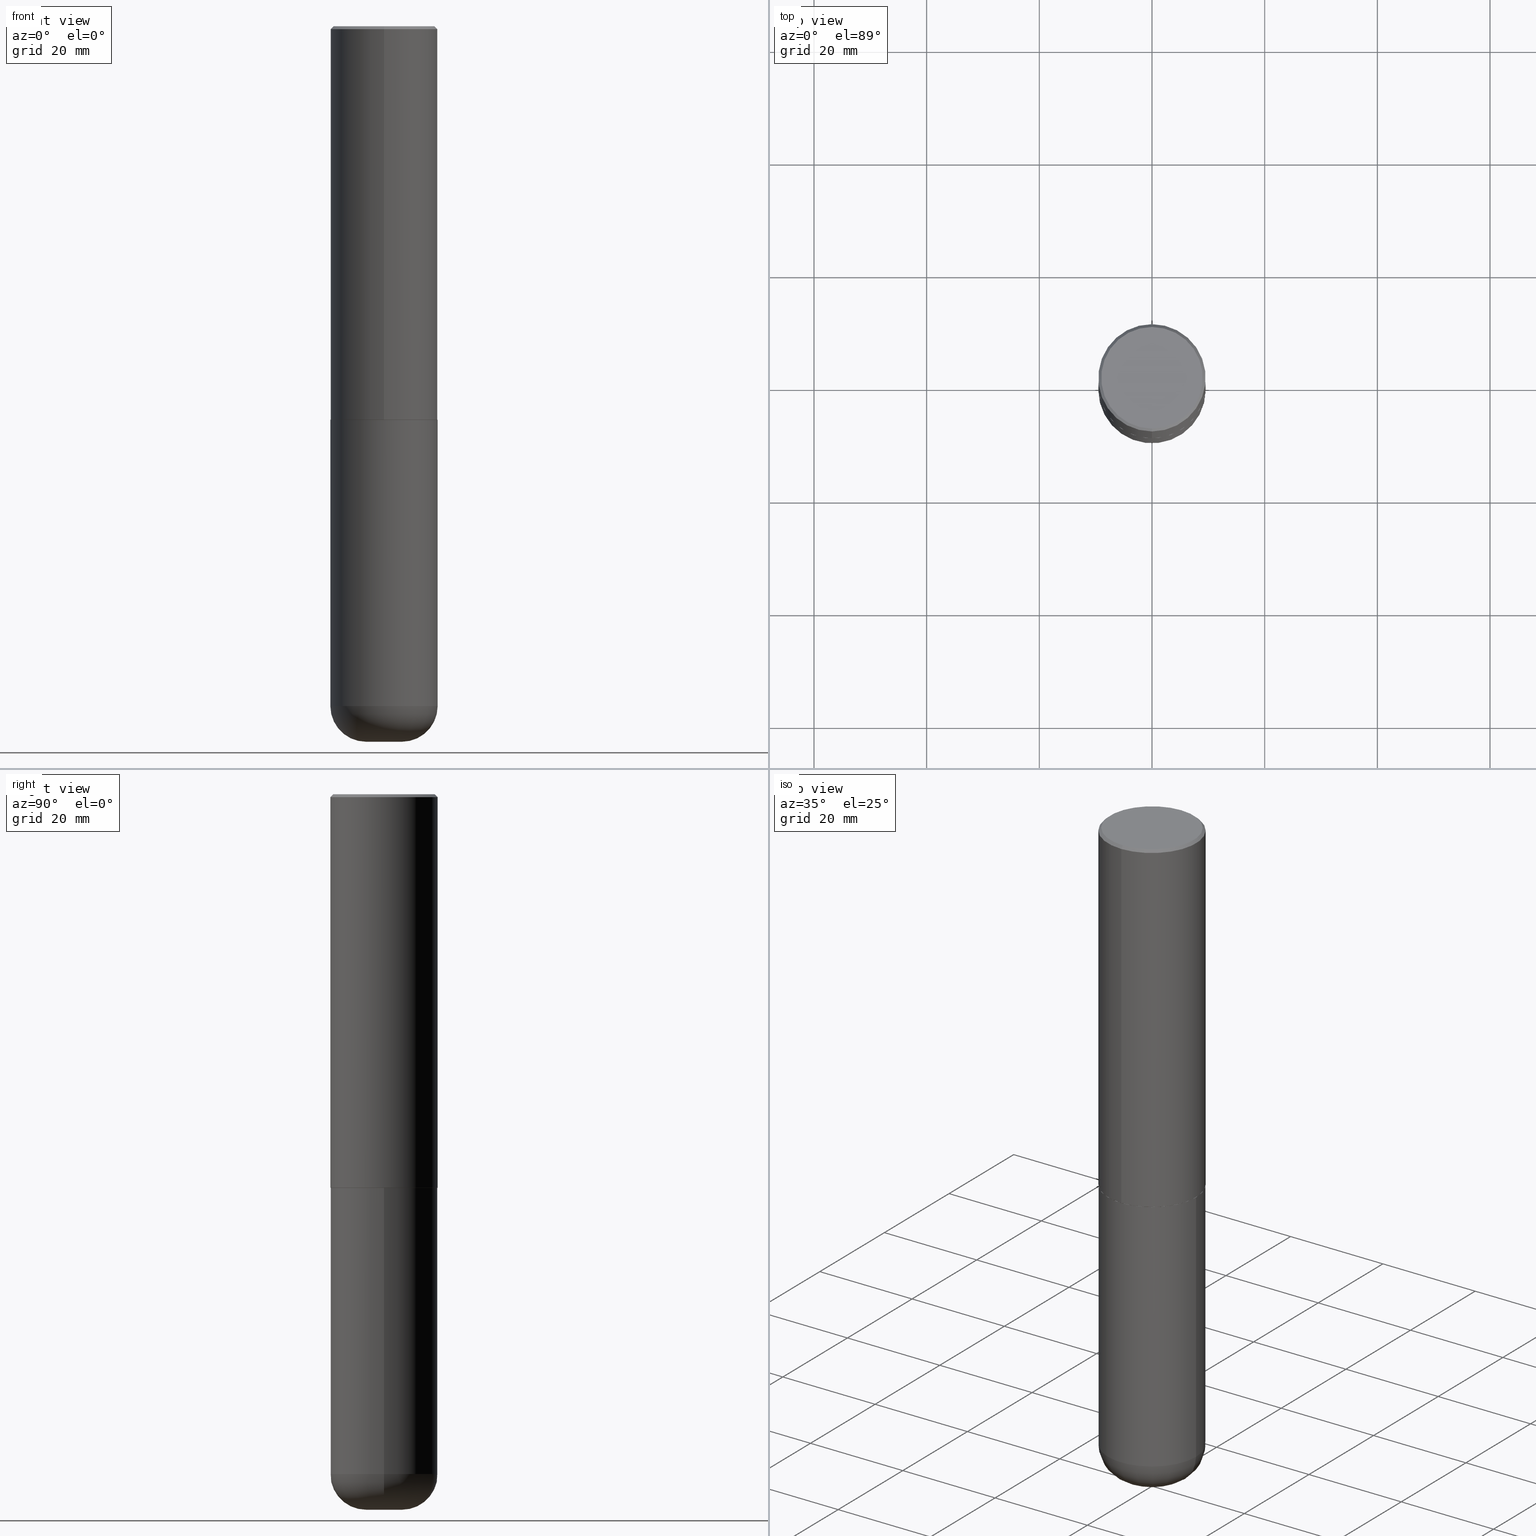
[diagram: canonical four-view strip — front | top / right | iso, engineering-drawing reading convention]
A machine part, canonical four-view strip (front | top / right | iso — engineering-drawing reading convention). The complete STEP part file that produces these views, byte-faithful:
ISO-10303-21;
HEADER;
FILE_DESCRIPTION (( 'STEP AP203' ),
    '1' );
FILE_NAME ('37687.STEP',
    '2024-03-02T08:19:22',
    ( '' ),
    ( '' ),
    'SwSTEP 2.0',
    'SolidWorks 2023',
    '' );
FILE_SCHEMA (( 'CONFIG_CONTROL_DESIGN' ));
ENDSEC;

DATA;
#1 = LINE ( 'NONE', #71, #305 ) ;
#2 = DIRECTION ( 'NONE',  ( -2.445468806185136877E-29, 3.491481338843145188E-15, 1.000000000000000000 ) ) ;
#3 = CIRCLE ( 'NONE', #383, 0.3750000000000000555 ) ;
#4 = ADVANCED_FACE ( 'NONE', ( #402 ), #225, .T. ) ;
#5 = DIRECTION ( 'NONE',  ( 7.105427357601001859E-15, 1.000000000000000000, -3.491481338843145583E-15 ) ) ;
#6 = ORIENTED_EDGE ( 'NONE', *, *, #344, .F. ) ;
#7 = EDGE_CURVE ( 'NONE', #157, #76, #164, .T. ) ;
#8 = VECTOR ( 'NONE', #2, 39.37007874015748143 ) ;
#9 = CARTESIAN_POINT ( 'NONE',  ( -2.504081769186608216E-15, -0.3549999999999999822, 1.285848347115290366E-15 ) ) ;
#10 = AXIS2_PLACEMENT_3D ( 'NONE', #177, #304, #363 ) ;
#11 = CONICAL_SURFACE ( 'NONE', #362, 0.3739999999999999991, 0.7853981633977213939 ) ;
#12 = ORIENTED_EDGE ( 'NONE', *, *, #195, .T. ) ;
#13 = ORIENTED_EDGE ( 'NONE', *, *, #68, .F. ) ;
#14 = DIRECTION ( 'NONE',  ( 6.982962677686265922E-15, 1.000000000000000000, -3.494488891895536035E-15 ) ) ;
#15 = ORIENTED_EDGE ( 'NONE', *, *, #281, .T. ) ;
#16 = AXIS2_PLACEMENT_3D ( 'NONE', #227, #258, #32 ) ;
#17 = EDGE_LOOP ( 'NONE', ( #202, #88 ) ) ;
#18 = CC_DESIGN_PERSON_AND_ORGANIZATION_ASSIGNMENT ( #120, #224, ( #75 ) ) ;
#19 = PERSON_AND_ORGANIZATION ( #272, #415 ) ;
#20 = EDGE_LOOP ( 'NONE', ( #43, #370, #384, #214 ) ) ;
#21 = CARTESIAN_POINT ( 'NONE',  ( 2.478951750578624209E-15, 0.3549999999999999822, -1.215853765202481601E-15 ) ) ;
#22 = DIRECTION ( 'NONE',  ( 6.982962677686265922E-15, 1.000000000000000000, -3.490662795793665557E-15 ) ) ;
#23 = SECURITY_CLASSIFICATION_LEVEL ( 'unclassified' ) ;
#24 = CARTESIAN_POINT ( 'NONE',  ( 0.1250000000000000555, -1.833027702892651638E-14, -5.000000000000000888 ) ) ;
#25 = AXIS2_PLACEMENT_3D ( 'NONE', #190, #323, #278 ) ;
#26 = APPLICATION_PROTOCOL_DEFINITION ( 'international standard', 'config_control_design', 1994, #70 ) ;
#27 = LOCAL_TIME ( 3, 19, 22.00000000000000000, #321 ) ;
#28 = DIMENSIONAL_EXPONENTS ( 1.000000000000000000, 0.000000000000000000, 0.000000000000000000, 0.000000000000000000, 0.000000000000000000, 0.000000000000000000, 0.000000000000000000 ) ;
#29 = DATE_AND_TIME ( #194, #37 ) ;
#30 = EDGE_LOOP ( 'NONE', ( #343, #350, #399, #47 ) ) ;
#31 = FACE_OUTER_BOUND ( 'NONE', #180, .T. ) ;
#32 = DIRECTION ( 'NONE',  ( 1.000000000000000000, -6.982962677686266711E-15, 0.000000000000000000 ) ) ;
#33 = LINE ( 'NONE', #178, #373 ) ;
#34 = ORIENTED_EDGE ( 'NONE', *, *, #49, .F. ) ;
#35 = DIRECTION ( 'NONE',  ( -6.982962677686265922E-15, -1.000000000000000000, 3.494488891895536035E-15 ) ) ;
#36 = AXIS2_PLACEMENT_3D ( 'NONE', #241, #78, #14 ) ;
#37 = LOCAL_TIME ( 3, 19, 22.00000000000000000, #161 ) ;
#38 = PRODUCT_DEFINITION_SHAPE ( 'NONE', 'NONE',  #63 ) ;
#39 = CC_DESIGN_PERSON_AND_ORGANIZATION_ASSIGNMENT ( #59, #411, ( #337 ) ) ;
#40 = EDGE_LOOP ( 'NONE', ( #100, #313, #407, #204 ) ) ;
#41 = CYLINDRICAL_SURFACE ( 'NONE', #150, 0.3749999999999999445 ) ;
#42 = CARTESIAN_POINT ( 'NONE',  ( 1.161597682937940108E-28, -1.658453635950494339E-14, -4.750000000000000000 ) ) ;
#43 = ORIENTED_EDGE ( 'NONE', *, *, #168, .F. ) ;
#44 = EDGE_CURVE ( 'NONE', #65, #246, #60, .T. ) ;
#45 = AXIS2_PLACEMENT_3D ( 'NONE', #395, #223, #99 ) ;
#46 = CIRCLE ( 'NONE', #174, 0.2500000000000003886 ) ;
#47 = ORIENTED_EDGE ( 'NONE', *, *, #331, .F. ) ;
#48 = PLANE ( 'NONE',  #45 ) ;
#49 = EDGE_CURVE ( 'NONE', #328, #334, #250, .T. ) ;
#50 = PERSON_AND_ORGANIZATION ( #272, #415 ) ;
#51 = APPLICATION_PROTOCOL_DEFINITION ( 'international standard', 'config_control_design', 1994, #409 ) ;
#52 = VECTOR ( 'NONE', #176, 39.37007874015748143 ) ;
#53 = CONICAL_SURFACE ( 'NONE', #226, 0.3750000000000000555, 0.7853981633974465026 ) ;
#54 = EDGE_CURVE ( 'NONE', #76, #114, #229, .T. ) ;
#55 = EDGE_LOOP ( 'NONE', ( #208, #332, #108, #113 ) ) ;
#56 = CARTESIAN_POINT ( 'NONE',  ( 0.3750000000000002220, -1.920314736363729341E-14, -4.750000000000000000 ) ) ;
#57 = CC_DESIGN_DATE_AND_TIME_ASSIGNMENT ( #29, #276, ( #300 ) ) ;
#58 = AXIS2_PLACEMENT_3D ( 'NONE', #309, #5, #394 ) ;
#59 = PERSON_AND_ORGANIZATION ( #272, #415 ) ;
#60 = LINE ( 'NONE', #135, #207 ) ;
#61 = EDGE_CURVE ( 'NONE', #114, #246, #273, .T. ) ;
#62 = FACE_OUTER_BOUND ( 'NONE', #263, .T. ) ;
#63 = PRODUCT_DEFINITION ( 'UNKNOWN', '', #337, #158 ) ;
#64 = LINE ( 'NONE', #257, #352 ) ;
#65 = VERTEX_POINT ( 'NONE', #396 ) ;
#66 = CIRCLE ( 'NONE', #336, 0.3750000000000003886 ) ;
#67 = EDGE_LOOP ( 'NONE', ( #83, #416 ) ) ;
#68 = EDGE_CURVE ( 'NONE', #157, #246, #64, .T. ) ;
#69 = FACE_OUTER_BOUND ( 'NONE', #40, .T. ) ;
#70 = APPLICATION_CONTEXT ( 'configuration controlled 3d designs of mechanical parts and assemblies' ) ;
#71 = CARTESIAN_POINT ( 'NONE',  ( -0.3749999999999999445, 2.664535259100375303E-15, -1.844600658845589318E-29 ) ) ;
#72 = ORIENTED_EDGE ( 'NONE', *, *, #195, .F. ) ;
#73 = AXIS2_PLACEMENT_3D ( 'NONE', #319, #356, #137 ) ;
#74 = APPROVAL_PERSON_ORGANIZATION ( #379, #181, #189 ) ;
#75 = PRODUCT ( '37687', '37687', '', ( #311 ) ) ;
#76 = VERTEX_POINT ( 'NONE', #131 ) ;
#77 = CARTESIAN_POINT ( 'NONE',  ( 6.724165036897648492E-29, -9.595832025636787455E-15, -2.749000000000000110 ) ) ;
#78 = DIRECTION ( 'NONE',  ( 2.446040391741596606E-29, -3.490662795793665557E-15, -1.000000000000000000 ) ) ;
#79 = CARTESIAN_POINT ( 'NONE',  ( 1.161597682937940108E-28, -1.658453635950494339E-14, -4.750000000000000000 ) ) ;
#80 = ORIENTED_EDGE ( 'NONE', *, *, #220, .F. ) ;
#81 = EDGE_CURVE ( 'NONE', #301, #114, #33, .T. ) ;
#82 = APPROVAL_STATUS ( 'not_yet_approved' ) ;
#83 = ORIENTED_EDGE ( 'NONE', *, *, #303, .F. ) ;
#84 = FACE_OUTER_BOUND ( 'NONE', #326, .T. ) ;
#85 = CIRCLE ( 'NONE', #324, 0.3749999999999999445 ) ;
#86 = CC_DESIGN_APPROVAL ( #270, ( #63 ) ) ;
#87 = PLANE ( 'NONE',  #104 ) ;
#88 = ORIENTED_EDGE ( 'NONE', *, *, #347, .T. ) ;
#89 = CARTESIAN_POINT ( 'NONE',  ( 6.726611077289389265E-29, -9.599322688432580971E-15, -2.750000000000000000 ) ) ;
#90 = DIRECTION ( 'NONE',  ( -6.982962677686266711E-15, -1.000000000000000000, 2.921762560068730595E-15 ) ) ;
#91 = PLANE ( 'NONE',  #354 ) ;
#92 = EDGE_CURVE ( 'NONE', #138, #364, #345, .T. ) ;
#93 = CARTESIAN_POINT ( 'NONE',  ( 2.660982545421643429E-15, 0.3739999999999903957, -2.750000000000000888 ) ) ;
#94 = VECTOR ( 'NONE', #129, 39.37007874015748143 ) ;
#95 = CIRCLE ( 'NONE', #16, 0.3750000000000000555 ) ;
#96 = EDGE_CURVE ( 'NONE', #148, #65, #98, .T. ) ;
#97 = DIRECTION ( 'NONE',  ( -1.000000000000000000, 6.982962677686265922E-15, -4.876176775795935793E-29 ) ) ;
#98 = LINE ( 'NONE', #105, #52 ) ;
#99 = DIRECTION ( 'NONE',  ( -1.000000000000000000, 6.982962677686265922E-15, -4.876176775795935793E-29 ) ) ;
#100 = ORIENTED_EDGE ( 'NONE', *, *, #81, .F. ) ;
#101 = CARTESIAN_POINT ( 'NONE',  ( 0.000000000000000000, 0.000000000000000000, 0.000000000000000000 ) ) ;
#102 = ORIENTED_EDGE ( 'NONE', *, *, #146, .T. ) ;
#103 = TOROIDAL_SURFACE ( 'NONE', #329, 0.1250000000000000278, 0.2500000000000003886 ) ;
#104 = AXIS2_PLACEMENT_3D ( 'NONE', #160, #322, #97 ) ;
#105 = CARTESIAN_POINT ( 'NONE',  ( -2.611628041454596160E-15, -0.3740000000000096581, -2.749999999999998668 ) ) ;
#106 = EDGE_LOOP ( 'NONE', ( #307, #338, #12, #372 ) ) ;
#107 = CARTESIAN_POINT ( 'NONE',  ( 0.000000000000000000, 0.000000000000000000, 0.000000000000000000 ) ) ;
#108 = ORIENTED_EDGE ( 'NONE', *, *, #331, .T. ) ;
#109 = DIRECTION ( 'NONE',  ( 1.000000000000000000, -6.982962677686269077E-15, 0.000000000000000000 ) ) ;
#110 = ORIENTED_EDGE ( 'NONE', *, *, #54, .T. ) ;
#111 = CONICAL_SURFACE ( 'NONE', #173, 0.3739999999999999991, 0.7853981633977213939 ) ;
#112 = APPROVAL_PERSON_ORGANIZATION ( #197, #270, #167 ) ;
#113 = ORIENTED_EDGE ( 'NONE', *, *, #146, .F. ) ;
#114 = VERTEX_POINT ( 'NONE', #235 ) ;
#115 = ADVANCED_FACE ( 'NONE', ( #203 ), #48, .F. ) ;
#116 =( CONVERSION_BASED_UNIT ( 'INCH', #405 ) LENGTH_UNIT ( ) NAMED_UNIT ( #28 ) );
#117 = CLOSED_SHELL ( 'NONE', ( #149, #357, #340, #4, #209, #374, #206, #355 ) ) ;
#118 = CC_DESIGN_PERSON_AND_ORGANIZATION_ASSIGNMENT ( #386, #219, ( #337 ) ) ;
#119 = UNCERTAINTY_MEASURE_WITH_UNIT (LENGTH_MEASURE( 1.000000000000000082E-05 ), #116, 'distance_accuracy_value', 'NONE');
#120 = PERSON_AND_ORGANIZATION ( #272, #415 ) ;
#121 = ORIENTED_EDGE ( 'NONE', *, *, #7, .T. ) ;
#122 = DIRECTION ( 'NONE',  ( 1.000000000000000000, -6.982962677686266711E-15, 4.876176775795935793E-29 ) ) ;
#123 = DIRECTION ( 'NONE',  ( -2.446040391741596606E-29, 3.490662795793665557E-15, 1.000000000000000000 ) ) ;
#124 = CARTESIAN_POINT ( 'NONE',  ( -1.141397163745304909E-45, 1.628849886601155835E-31, 4.666305460853910467E-17 ) ) ;
#125 = ORIENTED_EDGE ( 'NONE', *, *, #303, .T. ) ;
#126 = CARTESIAN_POINT ( 'NONE',  ( 1.161597682937940108E-28, -1.658453635950494339E-14, -4.750000000000000000 ) ) ;
#127 = DIRECTION ( 'NONE',  ( 1.000000000000000000, 0.000000000000000000, 0.000000000000000000 ) ) ;
#128 = CIRCLE ( 'NONE', #330, 0.3739999999999999991 ) ;
#129 = DIRECTION ( 'NONE',  ( 5.024295867789434219E-15, 0.7071067811867430830, 0.7071067811863519514 ) ) ;
#130 = MANIFOLD_SOLID_BREP ( 'Body-Move/Copy2[2]', #117 ) ;
#131 = CARTESIAN_POINT ( 'NONE',  ( 2.548781377355487113E-15, 0.3549999999999999822, -1.192522237898212341E-15 ) ) ;
#132 = DATE_AND_TIME ( #349, #233 ) ;
#133 = DIRECTION ( 'NONE',  ( 1.000000000000000000, -6.982962677686275388E-15, 0.000000000000000000 ) ) ;
#134 = ADVANCED_FACE ( 'NONE', ( #199 ), #287, .T. ) ;
#135 = CARTESIAN_POINT ( 'NONE',  ( -2.618611004132351594E-15, -0.3750000000000002220, 1.308998548422625521E-15 ) ) ;
#136 = APPROVAL_ROLE ( '' ) ;
#137 = DIRECTION ( 'NONE',  ( -6.982962677686265922E-15, -1.000000000000000000, 3.494488891895536035E-15 ) ) ;
#138 = VERTEX_POINT ( 'NONE', #381 ) ;
#139 = DIRECTION ( 'NONE',  ( -2.446040391741596606E-29, 3.490662795793665557E-15, 1.000000000000000000 ) ) ;
#140 = DIRECTION ( 'NONE',  ( -2.445468806185136877E-29, 3.491481338843145188E-15, 1.000000000000000000 ) ) ;
#141 = ADVANCED_FACE ( 'NONE', ( #84 ), #41, .T. ) ;
#142 = CLOSED_SHELL ( 'NONE', ( #141, #236, #115, #134, #183, #365 ) ) ;
#143 = ORIENTED_EDGE ( 'NONE', *, *, #347, .F. ) ;
#144 = CARTESIAN_POINT ( 'NONE',  ( 2.664535259100411196E-15, 0.3749999999999907296, -2.749000000000000998 ) ) ;
#145 = ORIENTED_EDGE ( 'NONE', *, *, #61, .T. ) ;
#146 = EDGE_CURVE ( 'NONE', #364, #328, #200, .T. ) ;
#147 = CYLINDRICAL_SURFACE ( 'NONE', #361, 0.3750000000000002220 ) ;
#148 = VERTEX_POINT ( 'NONE', #238 ) ;
#149 = ADVANCED_FACE ( 'NONE', ( #31 ), #111, .T. ) ;
#150 = AXIS2_PLACEMENT_3D ( 'NONE', #335, #282, #152 ) ;
#151 = ORIENTED_EDGE ( 'NONE', *, *, #220, .T. ) ;
#152 = DIRECTION ( 'NONE',  ( 1.000000000000000000, -6.982962677686266711E-15, 4.876176775795935793E-29 ) ) ;
#153 = DIRECTION ( 'NONE',  ( -2.446040391741596606E-29, 3.490662795793665557E-15, 1.000000000000000000 ) ) ;
#154 = ORIENTED_EDGE ( 'NONE', *, *, #44, .F. ) ;
#155 = AXIS2_PLACEMENT_3D ( 'NONE', #255, #196, #245 ) ;
#156 = PERSON_AND_ORGANIZATION_ROLE ( 'classification_officer' ) ;
#157 = VERTEX_POINT ( 'NONE', #9 ) ;
#158 = DESIGN_CONTEXT ( 'detailed design', #70, 'design' ) ;
#159 = CARTESIAN_POINT ( 'NONE',  ( 6.726611077289389265E-29, -9.599322688432580971E-15, -2.750000000000000000 ) ) ;
#160 = CARTESIAN_POINT ( 'NONE',  ( -1.829488409846578039E-28, -6.116697459284396031E-14, -5.000000000000000000 ) ) ;
#161 = COORDINATED_UNIVERSAL_TIME_OFFSET ( 5, 0, .BEHIND. ) ;
#162 = EDGE_LOOP ( 'NONE', ( #13, #217, #110, #145 ) ) ;
#163 = DIRECTION ( 'NONE',  ( -6.982962677686266711E-15, -1.000000000000000000, 3.491481338843145583E-15 ) ) ;
#164 = CIRCLE ( 'NONE', #256, 0.3549999999999999822 ) ;
#165 = CC_DESIGN_SECURITY_CLASSIFICATION ( #300, ( #337 ) ) ;
#166 = DIRECTION ( 'NONE',  ( 2.446040391741596606E-29, -3.490662795793665557E-15, -1.000000000000000000 ) ) ;
#167 = APPROVAL_ROLE ( '' ) ;
#168 = EDGE_CURVE ( 'NONE', #267, #301, #320, .T. ) ;
#169 = COORDINATED_UNIVERSAL_TIME_OFFSET ( 5, 0, .BEHIND. ) ;
#170 = DIRECTION ( 'NONE',  ( 1.000000000000000000, -6.982962677686270655E-15, 4.883557194083114583E-29 ) ) ;
#171 = EDGE_CURVE ( 'NONE', #76, #157, #269, .T. ) ;
#172 = DIRECTION ( 'NONE',  ( -2.446040391741596606E-29, 3.490662795793665557E-15, 1.000000000000000000 ) ) ;
#173 = AXIS2_PLACEMENT_3D ( 'NONE', #268, #240, #306 ) ;
#174 = AXIS2_PLACEMENT_3D ( 'NONE', #192, #163, #417 ) ;
#175 = APPROVAL_DATE_TIME ( #295, #403 ) ;
#176 = DIRECTION ( 'NONE',  ( -4.937700262165896205E-15, -0.7071067811867381980, 0.7071067811863568364 ) ) ;
#177 = CARTESIAN_POINT ( 'NONE',  ( 6.726611077289389265E-29, -9.599322688432580971E-15, -2.750000000000000000 ) ) ;
#178 = CARTESIAN_POINT ( 'NONE',  ( 2.664535259100376880E-15, 0.3750000000000002220, -1.308998548422625521E-15 ) ) ;
#179 = PERSON_AND_ORGANIZATION ( #272, #415 ) ;
#180 = EDGE_LOOP ( 'NONE', ( #125, #265, #80, #182 ) ) ;
#181 = APPROVAL ( #317, 'UNSPECIFIED' ) ;
#182 = ORIENTED_EDGE ( 'NONE', *, *, #96, .F. ) ;
#183 = ADVANCED_FACE ( 'NONE', ( #280 ), #103, .T. ) ;
#184 = AXIS2_PLACEMENT_3D ( 'NONE', #302, #153, #260 ) ;
#185 = LOCAL_TIME ( 3, 19, 22.00000000000000000, #327 ) ;
#186 = FACE_OUTER_BOUND ( 'NONE', #67, .T. ) ;
#187 = DIRECTION ( 'NONE',  ( 1.000000000000000000, -6.982962677686270655E-15, 4.883557194083114583E-29 ) ) ;
#188 = EDGE_CURVE ( 'NONE', #328, #364, #85, .T. ) ;
#189 = APPROVAL_ROLE ( '' ) ;
#190 = CARTESIAN_POINT ( 'NONE',  ( 6.726611077289389265E-29, -9.599322688432580971E-15, -2.750000000000000000 ) ) ;
#191 = FACE_OUTER_BOUND ( 'NONE', #20, .T. ) ;
#192 = CARTESIAN_POINT ( 'NONE',  ( 0.1250000000000000278, -1.745740669421572673E-14, -4.750000000000000000 ) ) ;
#193 = FACE_OUTER_BOUND ( 'NONE', #213, .T. ) ;
#194 = CALENDAR_DATE ( 2024, 2, 3 ) ;
#195 = EDGE_CURVE ( 'NONE', #246, #114, #382, .T. ) ;
#196 = DIRECTION ( 'NONE',  ( -2.446040391741596606E-29, 3.490662795793665557E-15, 1.000000000000000000 ) ) ;
#197 = PERSON_AND_ORGANIZATION ( #272, #415 ) ;
#198 = CC_DESIGN_DATE_AND_TIME_ASSIGNMENT ( #132, #279, ( #63 ) ) ;
#199 = FACE_OUTER_BOUND ( 'NONE', #271, .T. ) ;
#200 = CIRCLE ( 'NONE', #247, 0.3749999999999999445 ) ;
#201 = APPROVAL_PERSON_ORGANIZATION ( #179, #403, #136 ) ;
#202 = ORIENTED_EDGE ( 'NONE', *, *, #387, .T. ) ;
#203 = FACE_OUTER_BOUND ( 'NONE', #17, .T. ) ;
#204 = ORIENTED_EDGE ( 'NONE', *, *, #61, .F. ) ;
#205 = CARTESIAN_POINT ( 'NONE',  ( 2.657429831742841742E-15, 0.3739999999999903957, -2.750000000000000888 ) ) ;
#206 = ADVANCED_FACE ( 'NONE', ( #186 ), #400, .F. ) ;
#207 = VECTOR ( 'NONE', #139, 39.37007874015748143 ) ;
#208 = ORIENTED_EDGE ( 'NONE', *, *, #92, .F. ) ;
#209 = ADVANCED_FACE ( 'NONE', ( #69 ), #147, .T. ) ;
#210 = DIRECTION ( 'NONE',  ( -6.982962677686265922E-15, -1.000000000000000000, 2.913971193241877611E-15 ) ) ;
#211 = CIRCLE ( 'NONE', #25, 0.3739999999999999991 ) ;
#212 = CIRCLE ( 'NONE', #184, 0.3750000000000003886 ) ;
#213 = EDGE_LOOP ( 'NONE', ( #380, #121 ) ) ;
#214 = ORIENTED_EDGE ( 'NONE', *, *, #289, .F. ) ;
#215 = DIRECTION ( 'NONE',  ( 1.000000000000000000, -6.982962677686266711E-15, 0.000000000000000000 ) ) ;
#216 = CARTESIAN_POINT ( 'NONE',  ( 4.892080783483214581E-31, -6.981325591587361238E-17, -0.02000000000000008715 ) ) ;
#217 = ORIENTED_EDGE ( 'NONE', *, *, #171, .F. ) ;
#218 = DIRECTION ( 'NONE',  ( 1.000000000000000000, -6.982962677686275388E-15, 0.000000000000000000 ) ) ;
#219 = PERSON_AND_ORGANIZATION_ROLE ( 'creator' ) ;
#220 = EDGE_CURVE ( 'NONE', #65, #301, #66, .T. ) ;
#221 = CARTESIAN_POINT ( 'NONE',  ( 2.618611004132350411E-15, 0.3749999999999999445, -0.02000000000000139513 ) ) ;
#222 = CARTESIAN_POINT ( 'NONE',  ( 0.3750000000000000555, -1.222018468595100145E-14, -2.750000000000000000 ) ) ;
#223 = DIRECTION ( 'NONE',  ( 2.438088387897960049E-29, -3.491481338843145188E-15, -1.000000000000000000 ) ) ;
#224 = PERSON_AND_ORGANIZATION_ROLE ( 'design_owner' ) ;
#225 = CONICAL_SURFACE ( 'NONE', #36, 0.3750000000000000555, 0.7853981633974465026 ) ;
#226 = AXIS2_PLACEMENT_3D ( 'NONE', #216, #166, #390 ) ;
#227 = CARTESIAN_POINT ( 'NONE',  ( 6.725039217009124520E-29, -9.601573681818649859E-15, -2.750000000000000000 ) ) ;
#228 = APPROVAL_STATUS ( 'not_yet_approved' ) ;
#229 = LINE ( 'NONE', #221, #367 ) ;
#230 = DIRECTION ( 'NONE',  ( -2.446040391741596606E-29, 3.490662795793665557E-15, 1.000000000000000000 ) ) ;
#231 = CALENDAR_DATE ( 2024, 2, 3 ) ;
#232 = DIRECTION ( 'NONE',  ( -2.446040391741596606E-29, 3.490662795793665557E-15, 1.000000000000000000 ) ) ;
#233 = LOCAL_TIME ( 3, 19, 22.00000000000000000, #169 ) ;
#234 = VERTEX_POINT ( 'NONE', #24 ) ;
#235 = CARTESIAN_POINT ( 'NONE',  ( 2.618611004132350411E-15, 0.3749999999999999445, -0.02000000000000139513 ) ) ;
#236 = ADVANCED_FACE ( 'NONE', ( #397 ), #297, .T. ) ;
#237 = ORIENTED_EDGE ( 'NONE', *, *, #49, .T. ) ;
#238 = CARTESIAN_POINT ( 'NONE',  ( -2.611628041454596160E-15, -0.3740000000000096581, -2.749999999999998668 ) ) ;
#239 =( GEOMETRIC_REPRESENTATION_CONTEXT ( 3 ) GLOBAL_UNCERTAINTY_ASSIGNED_CONTEXT ( ( #119 ) ) GLOBAL_UNIT_ASSIGNED_CONTEXT ( ( #116, #378, #314 ) ) REPRESENTATION_CONTEXT ( 'NONE', 'WORKASPACE' ) );
#240 = DIRECTION ( 'NONE',  ( -2.446040391741596606E-29, 3.490662795793665557E-15, 1.000000000000000000 ) ) ;
#241 = CARTESIAN_POINT ( 'NONE',  ( 4.892080783483214581E-31, -6.981325591587361238E-17, -0.02000000000000008715 ) ) ;
#242 = AXIS2_PLACEMENT_3D ( 'NONE', #366, #264, #35 ) ;
#243 = AXIS2_PLACEMENT_3D ( 'NONE', #348, #251, #133 ) ;
#244 = DIRECTION ( 'NONE',  ( 0.000000000000000000, 0.000000000000000000, 1.000000000000000000 ) ) ;
#245 = DIRECTION ( 'NONE',  ( -6.982962677686266711E-15, -1.000000000000000000, 3.490662795793665951E-15 ) ) ;
#246 = VERTEX_POINT ( 'NONE', #253 ) ;
#247 = AXIS2_PLACEMENT_3D ( 'NONE', #79, #341, #109 ) ;
#248 = DIRECTION ( 'NONE',  ( 2.446040391741596045E-29, -3.490662795793665557E-15, -1.000000000000000000 ) ) ;
#249 = DATE_AND_TIME ( #346, #325 ) ;
#250 = LINE ( 'NONE', #385, #8 ) ;
#251 = DIRECTION ( 'NONE',  ( -2.445468806185136597E-29, 3.491481338843145583E-15, 1.000000000000000000 ) ) ;
#252 = COORDINATED_UNIVERSAL_TIME_OFFSET ( 5, 0, .BEHIND. ) ;
#253 = CARTESIAN_POINT ( 'NONE',  ( -2.572686749164323547E-15, -0.3750000000000001110, -0.01999999999999877570 ) ) ;
#254 = DIRECTION ( 'NONE',  ( -2.445468806185136597E-29, 3.491481338843145583E-15, 1.000000000000000000 ) ) ;
#255 = CARTESIAN_POINT ( 'NONE',  ( 0.000000000000000000, 0.000000000000000000, 0.000000000000000000 ) ) ;
#256 = AXIS2_PLACEMENT_3D ( 'NONE', #291, #172, #388 ) ;
#257 = CARTESIAN_POINT ( 'NONE',  ( -2.572686749164323547E-15, -0.3750000000000001110, -0.01999999999999877570 ) ) ;
#258 = DIRECTION ( 'NONE',  ( -2.445468806185136597E-29, 3.491481338843145583E-15, 1.000000000000000000 ) ) ;
#259 = CARTESIAN_POINT ( 'NONE',  ( 1.161597682937940108E-28, -1.658453635950494339E-14, -4.750000000000000000 ) ) ;
#260 = DIRECTION ( 'NONE',  ( -6.982962677686265922E-15, -1.000000000000000000, 2.913971193241877611E-15 ) ) ;
#261 = CARTESIAN_POINT ( 'NONE',  ( 0.000000000000000000, 0.000000000000000000, 0.000000000000000000 ) ) ;
#262 = CIRCLE ( 'NONE', #243, 0.1250000000000000555 ) ;
#263 = EDGE_LOOP ( 'NONE', ( #6, #296 ) ) ;
#264 = DIRECTION ( 'NONE',  ( -2.446040391741596606E-29, 3.490662795793665557E-15, 1.000000000000000000 ) ) ;
#265 = ORIENTED_EDGE ( 'NONE', *, *, #168, .T. ) ;
#266 = DIRECTION ( 'NONE',  ( -2.446040391741596606E-29, 3.490662795793665557E-15, 1.000000000000000000 ) ) ;
#267 = VERTEX_POINT ( 'NONE', #93 ) ;
#268 = CARTESIAN_POINT ( 'NONE',  ( 6.726611077289389265E-29, -9.599322688432580971E-15, -2.750000000000000000 ) ) ;
#269 = CIRCLE ( 'NONE', #391, 0.3549999999999999822 ) ;
#270 = APPROVAL ( #82, 'UNSPECIFIED' ) ;
#271 = EDGE_LOOP ( 'NONE', ( #294, #102, #237, #143 ) ) ;
#272 = PERSON ( 'UNSPECIFIED', 'UNSPECIFIED', 'UNSPECIFIED', ('UNSPECIFIED'), ('UNSPECIFIED'), ('UNSPECIFIED') ) ;
#273 = CIRCLE ( 'NONE', #73, 0.3750000000000000555 ) ;
#274 = CC_DESIGN_APPROVAL ( #403, ( #300 ) ) ;
#275 = ORIENTED_EDGE ( 'NONE', *, *, #81, .T. ) ;
#276 = DATE_TIME_ROLE ( 'classification_date' ) ;
#277 = ORIENTED_EDGE ( 'NONE', *, *, #188, .T. ) ;
#278 = DIRECTION ( 'NONE',  ( -6.982962677686266711E-15, -1.000000000000000000, 2.921762560068730595E-15 ) ) ;
#279 = DATE_TIME_ROLE ( 'creation_date' ) ;
#280 = FACE_OUTER_BOUND ( 'NONE', #55, .T. ) ;
#281 = EDGE_CURVE ( 'NONE', #364, #308, #1, .T. ) ;
#282 = DIRECTION ( 'NONE',  ( -2.445468806185136597E-29, 3.491481338843145583E-15, 1.000000000000000000 ) ) ;
#283 = CC_DESIGN_APPROVAL ( #181, ( #337 ) ) ;
#284 = CC_DESIGN_PERSON_AND_ORGANIZATION_ASSIGNMENT ( #50, #351, ( #63 ) ) ;
#285 = CALENDAR_DATE ( 2024, 2, 3 ) ;
#286 = CARTESIAN_POINT ( 'NONE',  ( -0.3750000000000002220, -1.392000110040456296E-14, -4.750000000000000000 ) ) ;
#287 = CYLINDRICAL_SURFACE ( 'NONE', #413, 0.3749999999999999445 ) ;
#288 = DIRECTION ( 'NONE',  ( -2.445468806185136597E-29, 3.491481338843145583E-15, 1.000000000000000000 ) ) ;
#289 = EDGE_CURVE ( 'NONE', #301, #65, #212, .T. ) ;
#290 = AXIS2_PLACEMENT_3D ( 'NONE', #101, #244, #127 ) ;
#291 = CARTESIAN_POINT ( 'NONE',  ( -1.141397163745304909E-45, 1.628849886601155835E-31, 4.666305460853910467E-17 ) ) ;
#292 = FACE_OUTER_BOUND ( 'NONE', #106, .T. ) ;
#293 = DIRECTION ( 'NONE',  ( -2.446040391741596606E-29, 3.490662795793665557E-15, 1.000000000000000000 ) ) ;
#294 = ORIENTED_EDGE ( 'NONE', *, *, #281, .F. ) ;
#295 = DATE_AND_TIME ( #231, #185 ) ;
#296 = ORIENTED_EDGE ( 'NONE', *, *, #406, .F. ) ;
#297 = TOROIDAL_SURFACE ( 'NONE', #398, 0.1250000000000000278, 0.2500000000000003886 ) ;
#298 = DIRECTION ( 'NONE',  ( 1.000000000000000000, -6.982962677686269077E-15, 0.000000000000000000 ) ) ;
#299 = CC_DESIGN_PERSON_AND_ORGANIZATION_ASSIGNMENT ( #19, #156, ( #300 ) ) ;
#300 = SECURITY_CLASSIFICATION ( '', '', #23 ) ;
#301 = VERTEX_POINT ( 'NONE', #144 ) ;
#302 = CARTESIAN_POINT ( 'NONE',  ( 6.724165036897648492E-29, -9.595832025636787455E-15, -2.749000000000000110 ) ) ;
#303 = EDGE_CURVE ( 'NONE', #148, #267, #211, .T. ) ;
#304 = DIRECTION ( 'NONE',  ( -2.446040391741596045E-29, 3.490662795793665557E-15, 1.000000000000000000 ) ) ;
#305 = VECTOR ( 'NONE', #140, 39.37007874015748143 ) ;
#306 = DIRECTION ( 'NONE',  ( -6.982962677686266711E-15, -1.000000000000000000, 2.921762560068730595E-15 ) ) ;
#307 = ORIENTED_EDGE ( 'NONE', *, *, #7, .F. ) ;
#308 = VERTEX_POINT ( 'NONE', #408 ) ;
#309 = CARTESIAN_POINT ( 'NONE',  ( -0.1250000000000000278, -1.569635793980481500E-14, -4.750000000000000000 ) ) ;
#310 = EDGE_CURVE ( 'NONE', #267, #148, #128, .T. ) ;
#311 = MECHANICAL_CONTEXT ( 'NONE', #409, 'mechanical' ) ;
#312 = APPROVAL_DATE_TIME ( #249, #181 ) ;
#313 = ORIENTED_EDGE ( 'NONE', *, *, #289, .T. ) ;
#314 =( NAMED_UNIT ( * ) SI_UNIT ( $, .STERADIAN. ) SOLID_ANGLE_UNIT ( ) );
#315 = CARTESIAN_POINT ( 'NONE',  ( 1.222734403092568523E-28, -1.745740669421573304E-14, -5.000000000000000888 ) ) ;
#316 = DIRECTION ( 'NONE',  ( -6.982962677686266711E-15, -1.000000000000000000, 2.921762560068730595E-15 ) ) ;
#317 = APPROVAL_STATUS ( 'not_yet_approved' ) ;
#318 = FACE_OUTER_BOUND ( 'NONE', #359, .T. ) ;
#319 = CARTESIAN_POINT ( 'NONE',  ( 4.892080783483214581E-31, -6.981325591587361238E-17, -0.02000000000000008715 ) ) ;
#320 = LINE ( 'NONE', #205, #94 ) ;
#321 = COORDINATED_UNIVERSAL_TIME_OFFSET ( 5, 0, .BEHIND. ) ;
#322 = DIRECTION ( 'NONE',  ( 2.438088387897960049E-29, -3.491481338843145188E-15, -1.000000000000000000 ) ) ;
#323 = DIRECTION ( 'NONE',  ( -2.446040391741596606E-29, 3.490662795793665557E-15, 1.000000000000000000 ) ) ;
#324 = AXIS2_PLACEMENT_3D ( 'NONE', #42, #254, #298 ) ;
#325 = LOCAL_TIME ( 3, 19, 22.00000000000000000, #252 ) ;
#326 = EDGE_LOOP ( 'NONE', ( #277, #15, #412, #34 ) ) ;
#327 = COORDINATED_UNIVERSAL_TIME_OFFSET ( 5, 0, .BEHIND. ) ;
#328 = VERTEX_POINT ( 'NONE', #56 ) ;
#329 = AXIS2_PLACEMENT_3D ( 'NONE', #126, #360, #187 ) ;
#330 = AXIS2_PLACEMENT_3D ( 'NONE', #89, #123, #316 ) ;
#331 = EDGE_CURVE ( 'NONE', #234, #328, #46, .T. ) ;
#332 = ORIENTED_EDGE ( 'NONE', *, *, #406, .T. ) ;
#333 = PRODUCT_RELATED_PRODUCT_CATEGORY ( 'detail', '', ( #75 ) ) ;
#334 = VERTEX_POINT ( 'NONE', #222 ) ;
#335 = CARTESIAN_POINT ( 'NONE',  ( 0.000000000000000000, 0.000000000000000000, 0.000000000000000000 ) ) ;
#336 = AXIS2_PLACEMENT_3D ( 'NONE', #77, #401, #210 ) ;
#337 = PRODUCT_DEFINITION_FORMATION_WITH_SPECIFIED_SOURCE ( 'ANY', '', #75, .NOT_KNOWN. ) ;
#338 = ORIENTED_EDGE ( 'NONE', *, *, #68, .T. ) ;
#339 = DIRECTION ( 'NONE',  ( -6.982962677686265922E-15, -1.000000000000000000, 3.490662795793665557E-15 ) ) ;
#340 = ADVANCED_FACE ( 'NONE', ( #292 ), #53, .T. ) ;
#341 = DIRECTION ( 'NONE',  ( -2.445468806185136597E-29, 3.491481338843145583E-15, 1.000000000000000000 ) ) ;
#342 = APPROVAL_DATE_TIME ( #418, #270 ) ;
#343 = ORIENTED_EDGE ( 'NONE', *, *, #344, .T. ) ;
#344 = EDGE_CURVE ( 'NONE', #234, #138, #368, .T. ) ;
#345 = CIRCLE ( 'NONE', #58, 0.2500000000000003886 ) ;
#346 = CALENDAR_DATE ( 2024, 2, 3 ) ;
#347 = EDGE_CURVE ( 'NONE', #308, #334, #95, .T. ) ;
#348 = CARTESIAN_POINT ( 'NONE',  ( 1.222734403092568523E-28, -1.745740669421573304E-14, -5.000000000000000888 ) ) ;
#349 = CALENDAR_DATE ( 2024, 2, 3 ) ;
#350 = ORIENTED_EDGE ( 'NONE', *, *, #92, .T. ) ;
#351 = PERSON_AND_ORGANIZATION_ROLE ( 'creator' ) ;
#352 = VECTOR ( 'NONE', #358, 39.37007874015748143 ) ;
#353 = DIRECTION ( 'NONE',  ( 4.937700262164538576E-15, 0.7071067811865437980, -0.7071067811865512365 ) ) ;
#354 = AXIS2_PLACEMENT_3D ( 'NONE', #21, #248, #22 ) ;
#355 = ADVANCED_FACE ( 'NONE', ( #193 ), #91, .F. ) ;
#356 = DIRECTION ( 'NONE',  ( -2.446040391741596606E-29, 3.490662795793665557E-15, 1.000000000000000000 ) ) ;
#357 = ADVANCED_FACE ( 'NONE', ( #318 ), #393, .T. ) ;
#358 = DIRECTION ( 'NONE',  ( -4.851104656540954809E-15, -0.7071067811865486830, -0.7071067811865463515 ) ) ;
#359 = EDGE_LOOP ( 'NONE', ( #151, #275, #72, #154 ) ) ;
#360 = DIRECTION ( 'NONE',  ( -2.445468806185136597E-29, 3.491481338843145583E-15, 1.000000000000000000 ) ) ;
#361 = AXIS2_PLACEMENT_3D ( 'NONE', #107, #266, #377 ) ;
#362 = AXIS2_PLACEMENT_3D ( 'NONE', #159, #230, #90 ) ;
#363 = DIRECTION ( 'NONE',  ( -6.982962677686265922E-15, -1.000000000000000000, 3.490662795793665557E-15 ) ) ;
#364 = VERTEX_POINT ( 'NONE', #286 ) ;
#365 = ADVANCED_FACE ( 'NONE', ( #62 ), #87, .T. ) ;
#366 = CARTESIAN_POINT ( 'NONE',  ( 4.892080783483214581E-31, -6.981325591587361238E-17, -0.02000000000000008715 ) ) ;
#367 = VECTOR ( 'NONE', #353, 39.37007874015748143 ) ;
#368 = CIRCLE ( 'NONE', #392, 0.1250000000000000555 ) ;
#369 = SHAPE_DEFINITION_REPRESENTATION ( #38, #371 ) ;
#370 = ORIENTED_EDGE ( 'NONE', *, *, #310, .T. ) ;
#371 = ADVANCED_BREP_SHAPE_REPRESENTATION ( '37687', ( #404, #130, #290 ), #239 ) ;
#372 = ORIENTED_EDGE ( 'NONE', *, *, #54, .F. ) ;
#373 = VECTOR ( 'NONE', #293, 39.37007874015748143 ) ;
#374 = ADVANCED_FACE ( 'NONE', ( #191 ), #11, .T. ) ;
#375 =( LENGTH_UNIT ( ) NAMED_UNIT ( * ) SI_UNIT ( $, .METRE. ) );
#376 = DIRECTION ( 'NONE',  ( -2.445468806185136597E-29, 3.491481338843145583E-15, 1.000000000000000000 ) ) ;
#377 = DIRECTION ( 'NONE',  ( -6.982962677686266711E-15, -1.000000000000000000, 3.490662795793665951E-15 ) ) ;
#378 =( NAMED_UNIT ( * ) PLANE_ANGLE_UNIT ( ) SI_UNIT ( $, .RADIAN. ) );
#379 = PERSON_AND_ORGANIZATION ( #272, #415 ) ;
#380 = ORIENTED_EDGE ( 'NONE', *, *, #171, .T. ) ;
#381 = CARTESIAN_POINT ( 'NONE',  ( -0.1250000000000000555, -1.524461468746008302E-14, -5.000000000000000888 ) ) ;
#382 = CIRCLE ( 'NONE', #242, 0.3750000000000000555 ) ;
#383 = AXIS2_PLACEMENT_3D ( 'NONE', #414, #410, #215 ) ;
#384 = ORIENTED_EDGE ( 'NONE', *, *, #96, .T. ) ;
#385 = CARTESIAN_POINT ( 'NONE',  ( 0.3749999999999999445, -2.618611004132349622E-15, 1.828566290923475642E-29 ) ) ;
#386 = PERSON_AND_ORGANIZATION ( #272, #415 ) ;
#387 = EDGE_CURVE ( 'NONE', #334, #308, #3, .T. ) ;
#388 = DIRECTION ( 'NONE',  ( -6.982962677686265922E-15, -1.000000000000000000, 3.490662795793665557E-15 ) ) ;
#389 = DIRECTION ( 'NONE',  ( -2.445468806185136597E-29, 3.491481338843145583E-15, 1.000000000000000000 ) ) ;
#390 = DIRECTION ( 'NONE',  ( 6.982962677686265922E-15, 1.000000000000000000, -3.494488891895536035E-15 ) ) ;
#391 = AXIS2_PLACEMENT_3D ( 'NONE', #124, #232, #339 ) ;
#392 = AXIS2_PLACEMENT_3D ( 'NONE', #315, #288, #218 ) ;
#393 = CYLINDRICAL_SURFACE ( 'NONE', #155, 0.3750000000000002220 ) ;
#394 = DIRECTION ( 'NONE',  ( -1.000000000000000000, 7.105427357601000281E-15, 0.000000000000000000 ) ) ;
#395 = CARTESIAN_POINT ( 'NONE',  ( 6.725039217009124520E-29, -9.601573681818649859E-15, -2.750000000000000000 ) ) ;
#396 = CARTESIAN_POINT ( 'NONE',  ( -2.618611004132284935E-15, -0.3750000000000099920, -2.748999999999999222 ) ) ;
#397 = FACE_OUTER_BOUND ( 'NONE', #30, .T. ) ;
#398 = AXIS2_PLACEMENT_3D ( 'NONE', #259, #389, #170 ) ;
#399 = ORIENTED_EDGE ( 'NONE', *, *, #188, .F. ) ;
#400 = PLANE ( 'NONE',  #10 ) ;
#401 = DIRECTION ( 'NONE',  ( -2.446040391741596606E-29, 3.490662795793665557E-15, 1.000000000000000000 ) ) ;
#402 = FACE_OUTER_BOUND ( 'NONE', #162, .T. ) ;
#403 = APPROVAL ( #228, 'UNSPECIFIED' ) ;
#404 = MANIFOLD_SOLID_BREP ( 'Body-Move/Copy2[1]', #142 ) ;
#405 = LENGTH_MEASURE_WITH_UNIT ( LENGTH_MEASURE( 0.02539999999999999897 ), #375 );
#406 = EDGE_CURVE ( 'NONE', #138, #234, #262, .T. ) ;
#407 = ORIENTED_EDGE ( 'NONE', *, *, #44, .T. ) ;
#408 = CARTESIAN_POINT ( 'NONE',  ( -0.3750000000000000555, -1.042851976156142014E-14, -2.750000000000000000 ) ) ;
#409 = APPLICATION_CONTEXT ( 'configuration controlled 3d designs of mechanical parts and assemblies' ) ;
#410 = DIRECTION ( 'NONE',  ( -2.445468806185136597E-29, 3.491481338843145583E-15, 1.000000000000000000 ) ) ;
#411 = PERSON_AND_ORGANIZATION_ROLE ( 'design_supplier' ) ;
#412 = ORIENTED_EDGE ( 'NONE', *, *, #387, .F. ) ;
#413 = AXIS2_PLACEMENT_3D ( 'NONE', #261, #376, #122 ) ;
#414 = CARTESIAN_POINT ( 'NONE',  ( 6.725039217009124520E-29, -9.601573681818649859E-15, -2.750000000000000000 ) ) ;
#415 = ORGANIZATION ( 'UNSPECIFIED', 'UNSPECIFIED', '' ) ;
#416 = ORIENTED_EDGE ( 'NONE', *, *, #310, .F. ) ;
#417 = DIRECTION ( 'NONE',  ( 1.000000000000000000, -6.982962677686259611E-15, 0.000000000000000000 ) ) ;
#418 = DATE_AND_TIME ( #285, #27 ) ;
ENDSEC;
END-ISO-10303-21;
